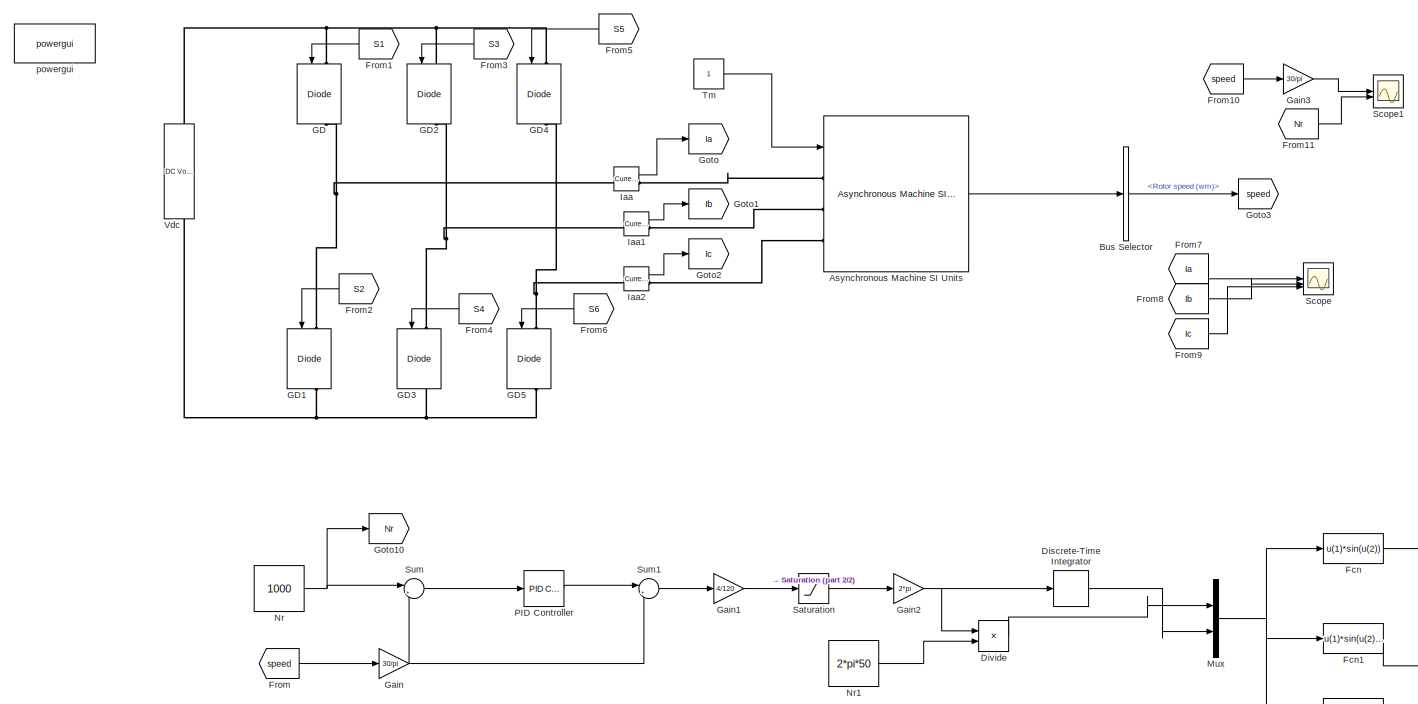
[diagram: root canvas - part 1/2, full width, middle band]
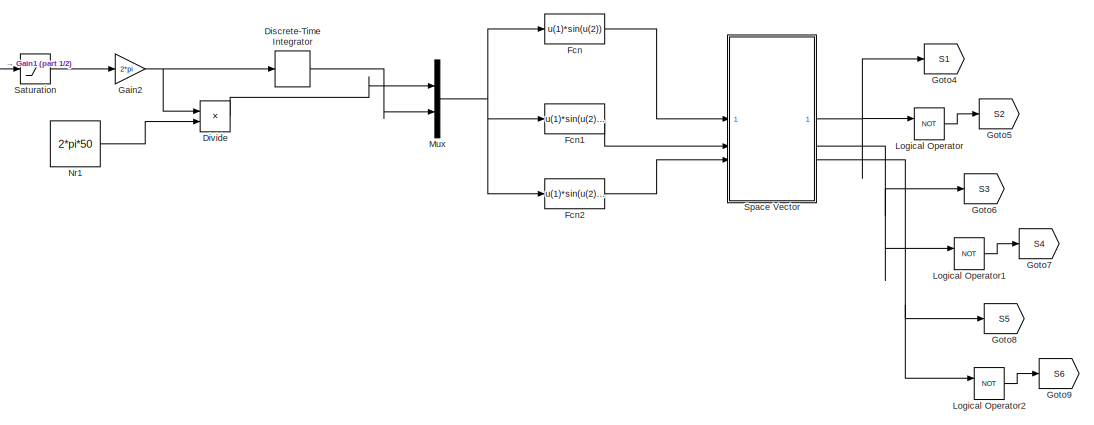
[diagram: root canvas - part 2/2, bottom right region]
MODEL slx_7efaffbf9382
KIND model
CONFIG AbsTol = auto
CONFIG EnableMultiTasking = off
CONFIG FixedStep = 1e-5
CONFIG MaxStep = auto
CONFIG MinStep = auto
CONFIG RelTol = 1e-3
CONFIG SampleTimeConstraint = Unconstrained
CONFIG SolverName = ode3
CONFIG StartTime = 0.0
CONFIG StopTime = 100
BLOCK [Reference] Asynchronous Machine SI Units  REF=spsAsynchronousMachineSIUnitsLib/Asynchronous Machine
SI Units
  LibrarySourceBlock = sps_lib/Electrical Machines/Asynchronous Machine\nSI Units
  SourceBlock = spsAsynchronousMachineSIUnitsLib/Asynchronous Machine\nSI Units
  SourceType = Asynchronous Machine
BLOCK [BusSelector] Bus Selector
  OutputSignals = Mechanical.Rotor speed (wm)
BLOCK [DiscreteIntegrator] Discrete-Time Integrator
  ICPrevOutput = DiscIntNeverNeededParam
  ICPrevScaledInput = DiscIntNeverNeededParam
  InitialConditionSetting = Auto
  SampleTime = -1
BLOCK [Product] Divide
  Inputs = */
BLOCK [Fcn] Fcn
  Expr = u(1)*sin(u(2))
BLOCK [Fcn] Fcn1
  Expr = u(1)*sin(u(2)-(2*pi/3))
BLOCK [Fcn] Fcn2
  Expr = u(1)*sin(u(2)-(4*pi/3))
BLOCK [From] From
  GotoTag = speed
BLOCK [From] From1
  GotoTag = S1
BLOCK [From] From10
  GotoTag = speed
BLOCK [From] From11
  GotoTag = Nr
BLOCK [From] From2
  GotoTag = S2
BLOCK [From] From3
  GotoTag = S3
BLOCK [From] From4
  GotoTag = S4
BLOCK [From] From5
  GotoTag = S5
BLOCK [From] From6
  GotoTag = S6
BLOCK [From] From7
  GotoTag = Ia
BLOCK [From] From8
  GotoTag = Ib
BLOCK [From] From9
  GotoTag = Ic
BLOCK [Reference] GD  REF=spsIGBTDiodeLib/IGBT//Diode
  LibrarySourceBlock = sps_lib/Power Electronics/IGBT//Diode
  NameLocation = left
  SourceBlock = spsIGBTDiodeLib/IGBT//Diode
  SourceType = IGBT/Diode
BLOCK [Reference] GD1  REF=spsIGBTDiodeLib/IGBT//Diode
  LibrarySourceBlock = sps_lib/Power Electronics/IGBT//Diode
  NameLocation = left
  SourceBlock = spsIGBTDiodeLib/IGBT//Diode
  SourceType = IGBT/Diode
BLOCK [Reference] GD2  REF=spsIGBTDiodeLib/IGBT//Diode
  LibrarySourceBlock = sps_lib/Power Electronics/IGBT//Diode
  NameLocation = left
  SourceBlock = spsIGBTDiodeLib/IGBT//Diode
  SourceType = IGBT/Diode
BLOCK [Reference] GD3  REF=spsIGBTDiodeLib/IGBT//Diode
  LibrarySourceBlock = sps_lib/Power Electronics/IGBT//Diode
  NameLocation = left
  SourceBlock = spsIGBTDiodeLib/IGBT//Diode
  SourceType = IGBT/Diode
BLOCK [Reference] GD4  REF=spsIGBTDiodeLib/IGBT//Diode
  LibrarySourceBlock = sps_lib/Power Electronics/IGBT//Diode
  NameLocation = left
  SourceBlock = spsIGBTDiodeLib/IGBT//Diode
  SourceType = IGBT/Diode
BLOCK [Reference] GD5  REF=spsIGBTDiodeLib/IGBT//Diode
  LibrarySourceBlock = sps_lib/Power Electronics/IGBT//Diode
  NameLocation = left
  SourceBlock = spsIGBTDiodeLib/IGBT//Diode
  SourceType = IGBT/Diode
BLOCK [Gain] Gain
  Gain = 30/pi
BLOCK [Gain] Gain1
  Gain = 4/120
BLOCK [Gain] Gain2
  Gain = 2*pi
BLOCK [Gain] Gain3
  Gain = 30/pi
BLOCK [Goto] Goto
  GotoTag = Ia
BLOCK [Goto] Goto1
  GotoTag = Ib
BLOCK [Goto] Goto10
  GotoTag = Nr
BLOCK [Goto] Goto2
  GotoTag = Ic
BLOCK [Goto] Goto3
  GotoTag = speed
BLOCK [Goto] Goto4
  GotoTag = S1
BLOCK [Goto] Goto5
  GotoTag = S2
BLOCK [Goto] Goto6
  GotoTag = S3
BLOCK [Goto] Goto7
  GotoTag = S4
BLOCK [Goto] Goto8
  GotoTag = S5
BLOCK [Goto] Goto9
  GotoTag = S6
BLOCK [Reference] Iaa  REF=spsCurrentMeasurementLib/Current Measurement
  LibrarySourceBlock = sps_lib/Sensors and Measurements/Current Measurement
  SourceBlock = spsCurrentMeasurementLib/Current Measurement
  SourceType = Current Measurement
  UserDataPersistent = on
BLOCK [Reference] Iaa1  REF=spsCurrentMeasurementLib/Current Measurement
  LibrarySourceBlock = sps_lib/Sensors and Measurements/Current Measurement
  SourceBlock = spsCurrentMeasurementLib/Current Measurement
  SourceType = Current Measurement
  UserDataPersistent = on
BLOCK [Reference] Iaa2  REF=spsCurrentMeasurementLib/Current Measurement
  LibrarySourceBlock = sps_lib/Sensors and Measurements/Current Measurement
  SourceBlock = spsCurrentMeasurementLib/Current Measurement
  SourceType = Current Measurement
  UserDataPersistent = on
BLOCK [Logic] Logical Operator
  AllPortsSameDT = off
  Operator = NOT
  OutDataTypeStr = boolean
BLOCK [Logic] Logical Operator1
  AllPortsSameDT = off
  Operator = NOT
  OutDataTypeStr = boolean
BLOCK [Logic] Logical Operator2
  AllPortsSameDT = off
  Operator = NOT
  OutDataTypeStr = boolean
BLOCK [Mux] Mux
  DisplayOption = bar
  Inputs = 2
BLOCK [Constant] Nr
  Value = 1000
BLOCK [Constant] Nr1
  Value = 2*pi*50
BLOCK [Reference] PID Controller  REF=slpidlib/PID Controller
  LibrarySourceBlock = simulink/Continuous/PID Controller
  SourceBlock = slpidlib/PID Controller
  SourceType = PID 1dof
BLOCK [Saturate] Saturation
  LowerLimit = 0
  UpperLimit = 50
BLOCK [Scope] Scope
  Floating = off
  NumInputPorts = 3
  ScopeSpecificationString = Simulink.scopes.TimeScopeBlockCfg('CurrentConfiguration', extmgr.ConfigurationSet(extmgr.Configuration('Core','General UI',true),extmgr.Configuration('Core','Source UI',true),extmgr.Configuration('Sources','WiredSimulink',true,'DataLoggingVariableName','ScopeData2'),extmgr.Configuration('Visuals','Time Domain',true,'SerializedDisplays',{struct('MinYLimReal','25.20966534171','MaxYLimReal','25.20966...<+1478ch>
BLOCK [Scope] Scope1
  Floating = off
  NumInputPorts = 2
  ScopeSpecificationString = Simulink.scopes.TimeScopeBlockCfg('CurrentConfiguration', extmgr.ConfigurationSet(extmgr.Configuration('Core','General UI',true),extmgr.Configuration('Core','Source UI',true),extmgr.Configuration('Sources','WiredSimulink',true,'DataLoggingVariableName','ScopeData3'),extmgr.Configuration('Visuals','Time Domain',true,'SerializedDisplays',{struct('MinYLimReal','627.36934','MaxYLimReal','1720.05233','...<+2277ch>
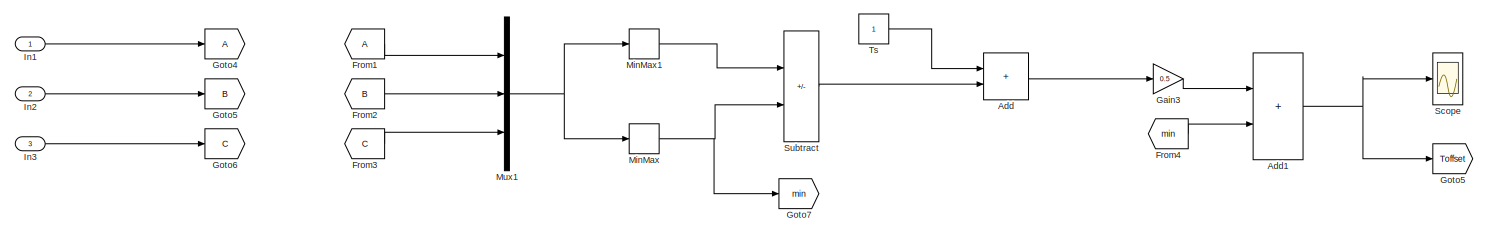
[diagram: Space Vector - part 1/2, full width, top band]
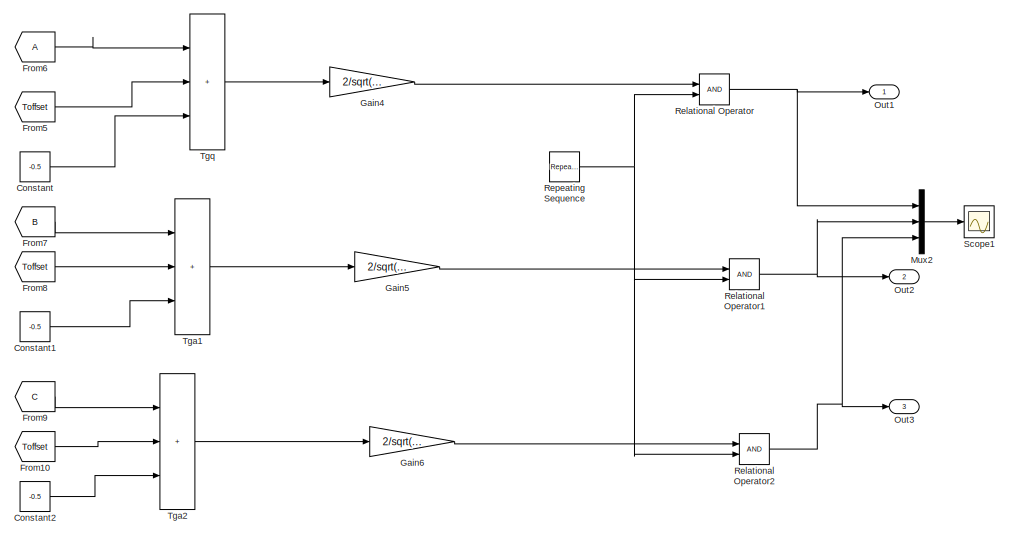
[diagram: Space Vector - part 2/2, bottom center region]
BLOCK [SubSystem] Space Vector
BLOCK [Sum] Space Vector/Add
  IconShape = rectangular
BLOCK [Sum] Space Vector/Add1
  IconShape = rectangular
BLOCK [Constant] Space Vector/Constant
  Value = -0.5
BLOCK [Constant] Space Vector/Constant1
  Value = -0.5
BLOCK [Constant] Space Vector/Constant2
  Value = -0.5
BLOCK [From] Space Vector/From1
BLOCK [From] Space Vector/From10
  GotoTag = Toffset
BLOCK [From] Space Vector/From2
  GotoTag = B
BLOCK [From] Space Vector/From3
  GotoTag = C
BLOCK [From] Space Vector/From4
  GotoTag = min
BLOCK [From] Space Vector/From5
  GotoTag = Toffset
BLOCK [From] Space Vector/From6
BLOCK [From] Space Vector/From7
  GotoTag = B
BLOCK [From] Space Vector/From8
  GotoTag = Toffset
BLOCK [From] Space Vector/From9
  GotoTag = C
BLOCK [Gain] Space Vector/Gain3
  Gain = 0.5
BLOCK [Gain] Space Vector/Gain4
  Gain = 2/sqrt(3)
BLOCK [Gain] Space Vector/Gain5
  Gain = 2/sqrt(3)
BLOCK [Gain] Space Vector/Gain6
  Gain = 2/sqrt(3)
BLOCK [Goto] Space Vector/Goto4
BLOCK [Goto] Space Vector/Goto5
  GotoTag = B
BLOCK [Goto] Space Vector/Goto5 
  GotoTag = Toffset
BLOCK [Goto] Space Vector/Goto6
  GotoTag = C
BLOCK [Goto] Space Vector/Goto7
  GotoTag = min
BLOCK [Inport] Space Vector/In1
BLOCK [Inport] Space Vector/In2
  Port = 2
BLOCK [Inport] Space Vector/In3
  Port = 3
BLOCK [MinMax] Space Vector/MinMax
BLOCK [MinMax] Space Vector/MinMax1
  Function = max
BLOCK [Mux] Space Vector/Mux1
  DisplayOption = bar
  Inputs = 3
BLOCK [Mux] Space Vector/Mux2
  DisplayOption = bar
  Inputs = 3
BLOCK [Outport] Space Vector/Out1
BLOCK [Outport] Space Vector/Out2
  Port = 2
BLOCK [Outport] Space Vector/Out3
  Port = 3
BLOCK [RelationalOperator] Space Vector/Relational Operator
  InputSameDT = off
  OutDataTypeStr = boolean
  RndMeth = Simplest
BLOCK [RelationalOperator] Space Vector/Relational Operator1
  InputSameDT = off
  OutDataTypeStr = boolean
  RndMeth = Simplest
BLOCK [RelationalOperator] Space Vector/Relational Operator2
  InputSameDT = off
  OutDataTypeStr = boolean
  RndMeth = Simplest
BLOCK [Reference] Space Vector/Repeating Sequence  REF=simulink/Sources/Repeating
Sequence
  SourceBlock = simulink/Sources/Repeating\nSequence
  SourceType = Repeating table
BLOCK [Scope] Space Vector/Scope
  Floating = off
  NumInputPorts = 1
  ScopeSpecificationString = Simulink.scopes.TimeScopeBlockCfg('CurrentConfiguration', extmgr.ConfigurationSet(extmgr.Configuration('Core','General UI',true),extmgr.Configuration('Core','Source UI',true),extmgr.Configuration('Sources','WiredSimulink',true),extmgr.Configuration('Visuals','Time Domain',true,'SerializedDisplays',{struct('MinYLimReal','0.1875','MaxYLimReal','0.8125','YLabelReal','','MinYLimMag','0.1875','MaxYLimM...<+1340ch>
BLOCK [Scope] Space Vector/Scope1
  Floating = off
  NumInputPorts = 1
  ScopeSpecificationString = Simulink.scopes.TimeScopeBlockCfg('CurrentConfiguration', extmgr.ConfigurationSet(extmgr.Configuration('Core','General UI',true),extmgr.Configuration('Core','Source UI',true),extmgr.Configuration('Sources','WiredSimulink',true,'DataLoggingVariableName','ScopeData1'),extmgr.Configuration('Visuals','Time Domain',true,'SerializedDisplays',{struct('MinYLimReal','0.5195','MaxYLimReal','0.5197','YLabelR...<+1459ch>
BLOCK [Sum] Space Vector/Subtract
  IconShape = rectangular
  Inputs = +-
BLOCK [Sum] Space Vector/Tga1
  IconShape = rectangular
  Inputs = +++
BLOCK [Sum] Space Vector/Tga2
  IconShape = rectangular
  Inputs = +++
BLOCK [Sum] Space Vector/Tgq
  IconShape = rectangular
  Inputs = +++
BLOCK [Constant] Space Vector/Ts
BLOCK [Sum] Sum
  Inputs = |+-
BLOCK [Sum] Sum1
  Inputs = |++
BLOCK [Constant] Tm
BLOCK [Reference] Vdc  REF=spsDCVoltageSourceLib/DC Voltage Source
  LibrarySourceBlock = sps_lib/Sources/DC Voltage Source
  SourceBlock = spsDCVoltageSourceLib/DC Voltage Source
  SourceType = DC Voltage Source
BLOCK [Reference] powergui  REF=sps_lib/powergui
  LibrarySourceBlock = sps_lib/powergui
  Priority = 1
  SourceBlock = sps_lib/powergui
  SourceType = PSB option menu block
LINE Asynchronous Machine SI Units:1 -> Bus Selector:1
LINE Bus Selector:1 -> Goto3:1
LINE Discrete-Time Integrator:1 -> Mux:2
LINE Divide:1 -> Mux:1
LINE Fcn1:1 -> Space Vector:2
LINE Fcn2:1 -> Space Vector:3
LINE Fcn:1 -> Space Vector:1
LINE From10:1 -> Gain3:1
LINE From11:1 -> Scope1:2
LINE From1:1 -> GD:1
LINE From2:1 -> GD1:1
LINE From3:1 -> GD2:1
LINE From4:1 -> GD3:1
LINE From5:1 -> GD4:1
LINE From6:1 -> GD5:1
LINE From7:1 -> Scope:1
LINE From8:1 -> Scope:2
LINE From9:1 -> Scope:3
LINE From:1 -> Gain:1
LINE Gain1:1 -> Saturation:1
NET Gain2:1 -> Discrete-Time Integrator:1, Divide:1
LINE Gain3:1 -> Scope1:1
NET Gain:1 -> Sum1:2, Sum:2
LINE Iaa1:1 -> Goto1:1
LINE Iaa2:1 -> Goto2:1
LINE Iaa:1 -> Goto:1
LINE Logical Operator1:1 -> Goto7:1
LINE Logical Operator2:1 -> Goto9:1
LINE Logical Operator:1 -> Goto5:1
NET Mux:1 -> Fcn1:1, Fcn2:1, Fcn:1
LINE Nr1:1 -> Divide:2
NET Nr:1 -> Goto10:1, Sum:1
LINE PID Controller:1 -> Sum1:1
LINE Saturation:1 -> Gain2:1
NET Space Vector/Add1:1 -> Space Vector/Goto5 :1, Space Vector/Scope:1
LINE Space Vector/Add:1 -> Space Vector/Gain3:1
LINE Space Vector/Constant1:1 -> Space Vector/Tga1:3
LINE Space Vector/Constant2:1 -> Space Vector/Tga2:3
LINE Space Vector/Constant:1 -> Space Vector/Tgq:3
LINE Space Vector/From10:1 -> Space Vector/Tga2:2
LINE Space Vector/From1:1 -> Space Vector/Mux1:1
LINE Space Vector/From2:1 -> Space Vector/Mux1:2
LINE Space Vector/From3:1 -> Space Vector/Mux1:3
LINE Space Vector/From4:1 -> Space Vector/Add1:2
LINE Space Vector/From5:1 -> Space Vector/Tgq:2
LINE Space Vector/From6:1 -> Space Vector/Tgq:1
LINE Space Vector/From7:1 -> Space Vector/Tga1:1
LINE Space Vector/From8:1 -> Space Vector/Tga1:2
LINE Space Vector/From9:1 -> Space Vector/Tga2:1
LINE Space Vector/Gain3:1 -> Space Vector/Add1:1
LINE Space Vector/Gain4:1 -> Space Vector/Relational Operator:1
LINE Space Vector/Gain5:1 -> Space Vector/Relational Operator1:1
LINE Space Vector/Gain6:1 -> Space Vector/Relational Operator2:1
LINE Space Vector/In1:1 -> Space Vector/Goto4:1
LINE Space Vector/In2:1 -> Space Vector/Goto5:1
LINE Space Vector/In3:1 -> Space Vector/Goto6:1
LINE Space Vector/MinMax1:1 -> Space Vector/Subtract:1
NET Space Vector/MinMax:1 -> Space Vector/Goto7:1, Space Vector/Subtract:2
NET Space Vector/Mux1:1 -> Space Vector/MinMax1:1, Space Vector/MinMax:1
LINE Space Vector/Mux2:1 -> Space Vector/Scope1:1
NET Space Vector/Relational Operator1:1 -> Space Vector/Mux2:2, Space Vector/Out2:1
NET Space Vector/Relational Operator2:1 -> Space Vector/Mux2:3, Space Vector/Out3:1
NET Space Vector/Relational Operator:1 -> Space Vector/Mux2:1, Space Vector/Out1:1
NET Space Vector/Repeating Sequence:1 -> Space Vector/Relational Operator1:2, Space Vector/Relational Operator2:2, Space Vector/Relational Operator:2
LINE Space Vector/Subtract:1 -> Space Vector/Add:2
LINE Space Vector/Tga1:1 -> Space Vector/Gain5:1
LINE Space Vector/Tga2:1 -> Space Vector/Gain6:1
LINE Space Vector/Tgq:1 -> Space Vector/Gain4:1
LINE Space Vector/Ts:1 -> Space Vector/Add:1
NET Space Vector:1 -> Goto4:1, Logical Operator:1
NET Space Vector:2 -> Goto6:1, Logical Operator1:1
NET Space Vector:3 -> Goto8:1, Logical Operator2:1
LINE Sum1:1 -> Gain1:1
LINE Sum:1 -> PID Controller:1
LINE Tm:1 -> Asynchronous Machine SI Units:1
PLINE Asynchronous Machine SI Units:LConn1 -- Iaa:RConn1
PLINE Asynchronous Machine SI Units:LConn2 -- Iaa1:RConn1
PLINE Asynchronous Machine SI Units:LConn3 -- Iaa2:RConn1
PNET net1: GD1:LConn1 -- GD:RConn1 -- Iaa:LConn1
PNET net2: GD1:RConn1 -- GD3:RConn1 -- GD5:RConn1 -- Vdc:LConn1
PNET net3: GD2:LConn1 -- GD4:LConn1 -- GD:LConn1 -- Vdc:RConn1
PNET net4: GD2:RConn1 -- GD3:LConn1 -- Iaa1:LConn1
PNET net5: GD4:RConn1 -- GD5:LConn1 -- Iaa2:LConn1
note: NET lines group one-source signal fan-out (src -> all destinations, sorted); 1:1 wires keep LINE; PNET lines group multi-terminal physical nets as a canonical sorted terminal list (undirected conserving connections); 2-terminal nets keep the pairwise PLINE form
